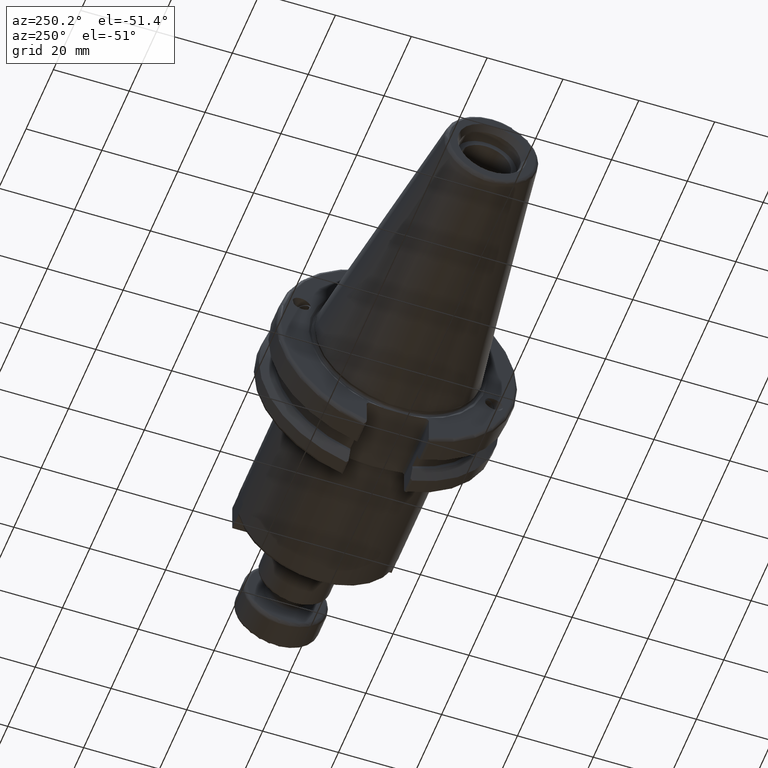
[diagram: clean part render]
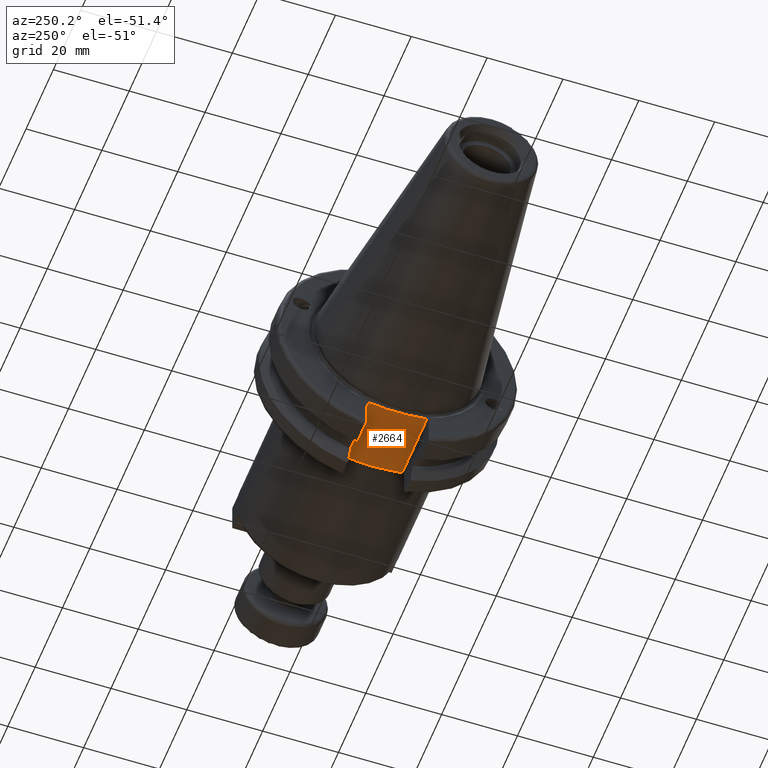
[diagram: same view with one face highlighted and labeled with its STEP entity id]
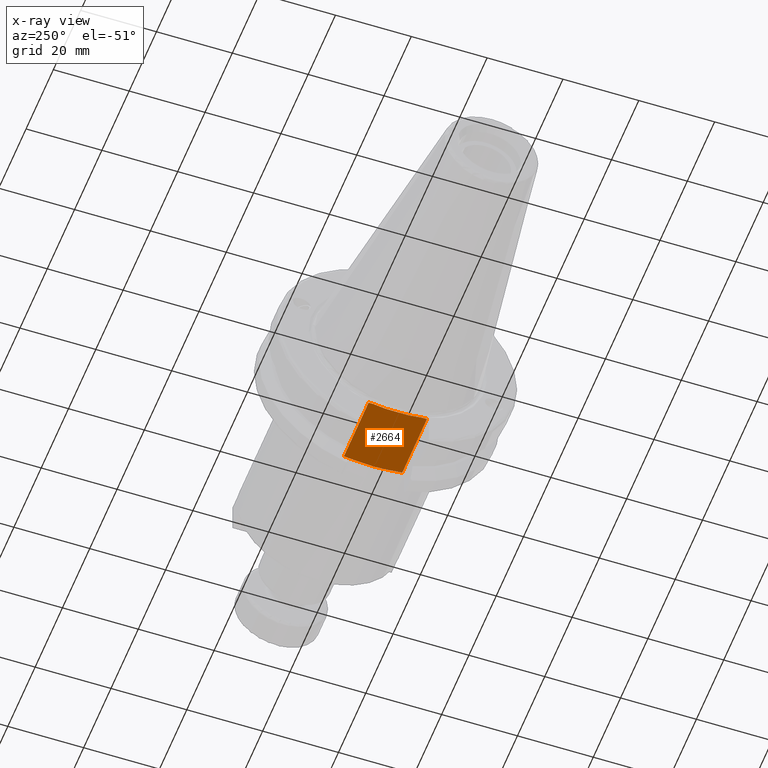
[diagram: x-ray of the same camera — body ghosted, the highlighted face saturated]
A machine part, auxiliary view. The second image highlights one B-rep face of the part: STEP entity #2664.
The next image is the same camera in x-ray: the body ghosted, the highlighted face saturated — about 0% of this face is hidden behind the body in this view.
In plain terms, the highlighted planar face has unit normal (0, 0, 1).
Its self-contained STEP definition (entity closure, byte-faithful):
#67=(
BOUNDED_CURVE()
B_SPLINE_CURVE(2,(#4889,#4890,#4891),.UNSPECIFIED.,.F.,.F.)
B_SPLINE_CURVE_WITH_KNOTS((3,3),(0.,0.339841691449478),.UNSPECIFIED.)
CURVE()
GEOMETRIC_REPRESENTATION_ITEM()
RATIONAL_B_SPLINE_CURVE((1.,1.00266518417081,1.))
REPRESENTATION_ITEM('')
);
#68=(
BOUNDED_CURVE()
B_SPLINE_CURVE(2,(#4894,#4895,#4896),.UNSPECIFIED.,.F.,.F.)
B_SPLINE_CURVE_WITH_KNOTS((3,3),(0.,0.339841691449478),.UNSPECIFIED.)
CURVE()
GEOMETRIC_REPRESENTATION_ITEM()
RATIONAL_B_SPLINE_CURVE((1.,1.00266518417081,1.))
REPRESENTATION_ITEM('')
);
#184=B_SPLINE_CURVE_WITH_KNOTS('',3,(#4236,#4237,#4238,#4239,#4240,#4241,
#4242,#4243),.UNSPECIFIED.,.F.,.F.,(4,2,2,4),(3.17820826926947,3.47573668495417,
3.77326510063888,3.90232460966406),.UNSPECIFIED.);
#187=B_SPLINE_CURVE_WITH_KNOTS('',3,(#4256,#4257,#4258,#4259,#4260,#4261,
#4262,#4263),.UNSPECIFIED.,.F.,.F.,(4,2,2,4),(2.45409192849505,2.58315143790005,
2.88067985358476,3.17820826926947),.UNSPECIFIED.);
#318=FACE_OUTER_BOUND('',#488,.T.);
#488=EDGE_LOOP('',(#2156,#2157,#2158,#2159,#2160,#2161,#2162,#2163,#2164));
#666=LINE('',#4861,#839);
#667=LINE('',#4865,#840);
#671=LINE('',#4885,#844);
#672=LINE('',#4887,#845);
#673=LINE('',#4893,#846);
#839=VECTOR('',#3591,10.);
#840=VECTOR('',#3594,10.);
#844=VECTOR('',#3620,10.);
#845=VECTOR('',#3623,10.);
#846=VECTOR('',#3624,10.);
#1109=VERTEX_POINT('',#4233);
#1110=VERTEX_POINT('',#4235);
#1113=VERTEX_POINT('',#4251);
#1230=VERTEX_POINT('',#4858);
#1231=VERTEX_POINT('',#4860);
#1232=VERTEX_POINT('',#4862);
#1233=VERTEX_POINT('',#4864);
#1239=VERTEX_POINT('',#4888);
#1240=VERTEX_POINT('',#4892);
#1392=EDGE_CURVE('',#1110,#1109,#184,.F.);
#1396=EDGE_CURVE('',#1109,#1113,#187,.F.);
#1561=EDGE_CURVE('',#1230,#1231,#666,.T.);
#1563=EDGE_CURVE('',#1232,#1233,#667,.T.);
#1573=EDGE_CURVE('',#1110,#1230,#671,.T.);
#1574=EDGE_CURVE('',#1233,#1113,#672,.T.);
#1575=EDGE_CURVE('',#1239,#1232,#67,.T.);
#1576=EDGE_CURVE('',#1240,#1239,#673,.T.);
#1577=EDGE_CURVE('',#1231,#1240,#68,.T.);
#2156=ORIENTED_EDGE('',*,*,#1573,.F.);
#2157=ORIENTED_EDGE('',*,*,#1392,.T.);
#2158=ORIENTED_EDGE('',*,*,#1396,.T.);
#2159=ORIENTED_EDGE('',*,*,#1574,.F.);
#2160=ORIENTED_EDGE('',*,*,#1563,.F.);
#2161=ORIENTED_EDGE('',*,*,#1575,.F.);
#2162=ORIENTED_EDGE('',*,*,#1576,.F.);
#2163=ORIENTED_EDGE('',*,*,#1577,.F.);
#2164=ORIENTED_EDGE('',*,*,#1561,.F.);
#2541=PLANE('',#3022);
#2664=ADVANCED_FACE('',(#318),#2541,.F.);
#3022=AXIS2_PLACEMENT_3D('',#4886,#3621,#3622);
#3591=DIRECTION('',(0.,-1.,0.));
#3594=DIRECTION('',(0.,-1.,0.));
#3620=DIRECTION('',(-1.,-1.16558847729675E-16,0.));
#3621=DIRECTION('center_axis',(0.,0.,1.));
#3622=DIRECTION('ref_axis',(1.,0.,0.));
#3623=DIRECTION('',(1.,0.,0.));
#3624=DIRECTION('',(0.,-1.,0.));
#4233=CARTESIAN_POINT('',(19.6805274848608,-1.38385088303651E-15,-22.6));
#4235=CARTESIAN_POINT('',(19.104165646948,7.69000000005452,-22.6000000000182));
#4236=CARTESIAN_POINT('Ctrl Pts',(19.6805274848608,2.77555756156289E-16,
-22.6));
#4237=CARTESIAN_POINT('Ctrl Pts',(19.6805274848608,0.99176138561569,-22.6));
#4238=CARTESIAN_POINT('Ctrl Pts',(19.6212004437599,2.07946279789332,-22.6));
#4239=CARTESIAN_POINT('Ctrl Pts',(19.4281399782644,4.25021896625356,-22.6));
#4240=CARTESIAN_POINT('Ctrl Pts',(19.3031677959524,5.33404401211898,-22.6));
#4241=CARTESIAN_POINT('Ctrl Pts',(19.1724628573142,6.74998389321754,-22.6));
#4242=CARTESIAN_POINT('Ctrl Pts',(19.1334444823363,7.21819205193497,-22.6));
#4243=CARTESIAN_POINT('Ctrl Pts',(19.1041656469491,7.69000000005449,-22.6));
#4251=CARTESIAN_POINT('',(19.1041656459323,-7.69000000417386,-22.6000000020869));
#4256=CARTESIAN_POINT('Ctrl Pts',(19.1041656466906,-7.69000000422028,-22.6));
#4257=CARTESIAN_POINT('Ctrl Pts',(19.1334444821077,-7.21819205469107,-22.6));
#4258=CARTESIAN_POINT('Ctrl Pts',(19.1724628571978,-6.74998389447826,-22.6));
#4259=CARTESIAN_POINT('Ctrl Pts',(19.3031677959524,-5.33404401211898,-22.6));
#4260=CARTESIAN_POINT('Ctrl Pts',(19.4281399782644,-4.25021896625356,-22.6));
#4261=CARTESIAN_POINT('Ctrl Pts',(19.6212004437599,-2.07946279789332,-22.6));
#4262=CARTESIAN_POINT('Ctrl Pts',(19.6805274848608,-0.991761385615691,-22.6));
#4263=CARTESIAN_POINT('Ctrl Pts',(19.6805274848608,-1.38777878078145E-15,
-22.6));
#4858=CARTESIAN_POINT('',(1.,7.69,-22.6));
#4860=CARTESIAN_POINT('',(0.999999999999997,6.4412731660752,-22.6));
#4861=CARTESIAN_POINT('',(1.,15.875,-22.6));
#4862=CARTESIAN_POINT('',(1.,-6.44127316607517,-22.6));
#4864=CARTESIAN_POINT('',(1.,-7.69,-22.6));
#4865=CARTESIAN_POINT('',(1.,15.875,-22.6));
#4885=CARTESIAN_POINT('',(7.81,7.69,-22.6));
#4886=CARTESIAN_POINT('Origin',(14.62,-5.55111512312578E-16,-22.6));
#4887=CARTESIAN_POINT('',(17.335,-7.69,-22.6));
#4888=CARTESIAN_POINT('',(1.4,-3.06715581894774,-22.6));
#4889=CARTESIAN_POINT('Ctrl Pts',(1.4,-3.06715581894779,-22.6));
#4890=CARTESIAN_POINT('Ctrl Pts',(1.27097107950098,-4.7289737297758,-22.6));
#4891=CARTESIAN_POINT('Ctrl Pts',(1.,-6.44127316607519,-22.6));
#4892=CARTESIAN_POINT('',(1.4,3.06715581894774,-22.6));
#4893=CARTESIAN_POINT('',(1.4,11.4035898384862,-22.6));
#4894=CARTESIAN_POINT('Ctrl Pts',(1.,6.44127316607519,-22.6));
#4895=CARTESIAN_POINT('Ctrl Pts',(1.27097107950098,4.7289737297758,-22.6));
#4896=CARTESIAN_POINT('Ctrl Pts',(1.4,3.06715581894779,-22.6));